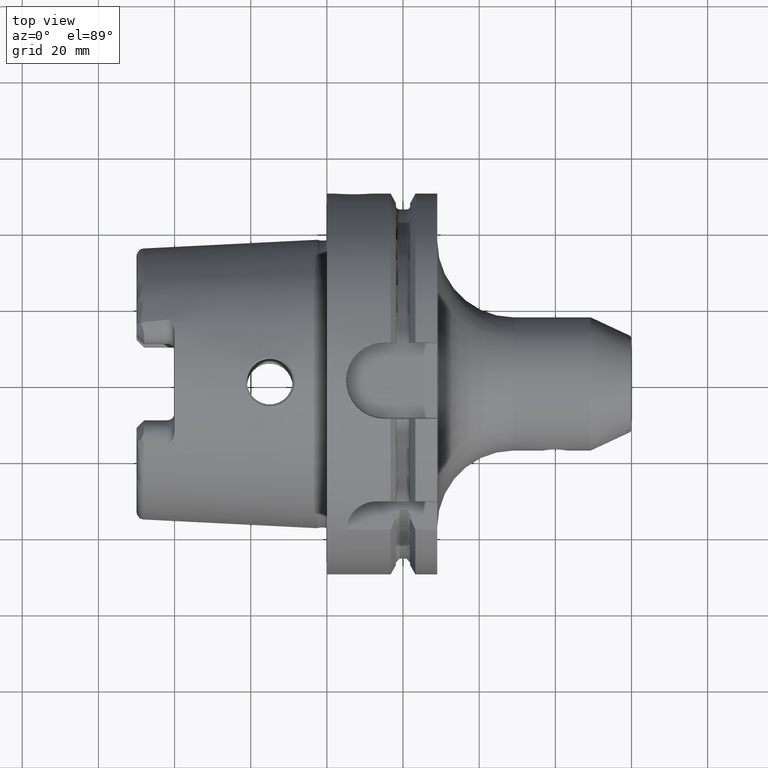
[diagram: clean part render]
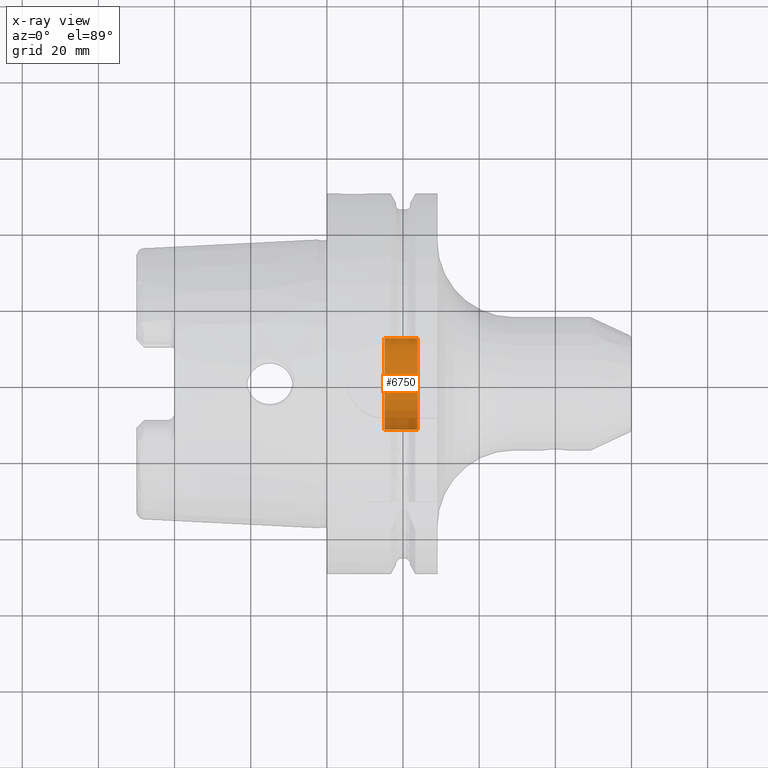
[diagram: x-ray — body ghosted, one internal face saturated and labeled with its STEP entity id]
A machine part, top view, then the same camera in x-ray: the body is ghosted and one INTERNAL B-rep face — a face not visible from any outside direction — is saturated and labeled: STEP entity #6750.
In plain terms, the highlighted cylindrical surface (partial cylindrical patch) has radius 12 mm, axis along (1, 0, 0).
Its self-contained STEP definition (entity closure, byte-faithful):
#6663=CARTESIAN_POINT('',(1.51625E1,0.E0,0.E0));
#6664=DIRECTION('',(1.E0,0.E0,0.E0));
#6665=DIRECTION('',(0.E0,-1.E0,0.E0));
#6666=AXIS2_PLACEMENT_3D('',#6663,#6664,#6665);
#6668=CARTESIAN_POINT('',(2.385262794416E1,0.E0,0.E0));
#6669=DIRECTION('',(-1.E0,0.E0,0.E0));
#6670=DIRECTION('',(0.E0,1.E0,0.E0));
#6671=AXIS2_PLACEMENT_3D('',#6668,#6669,#6670);
#6688=DIRECTION('',(-1.E0,0.E0,0.E0));
#6689=VECTOR('',#6688,8.690127944163E0);
#6690=CARTESIAN_POINT('',(2.385262794416E1,-1.2E1,0.E0));
#6691=LINE('',#6690,#6689);
#6697=DIRECTION('',(-1.E0,0.E0,0.E0));
#6698=VECTOR('',#6697,8.690127944163E0);
#6699=CARTESIAN_POINT('',(2.385262794416E1,1.2E1,0.E0));
#6700=LINE('',#6699,#6698);
#6723=CARTESIAN_POINT('',(1.51625E1,-1.2E1,0.E0));
#6724=CARTESIAN_POINT('',(1.51625E1,1.2E1,0.E0));
#6725=VERTEX_POINT('',#6723);
#6726=VERTEX_POINT('',#6724);
#6727=CARTESIAN_POINT('',(2.385262794416E1,-1.2E1,0.E0));
#6728=CARTESIAN_POINT('',(2.385262794416E1,1.2E1,0.E0));
#6729=VERTEX_POINT('',#6727);
#6730=VERTEX_POINT('',#6728);
#6735=CARTESIAN_POINT('',(-4.847666062263E0,0.E0,0.E0));
#6736=DIRECTION('',(1.E0,0.E0,0.E0));
#6737=DIRECTION('',(0.E0,-1.E0,0.E0));
#6738=AXIS2_PLACEMENT_3D('',#6735,#6736,#6737);
#6739=CYLINDRICAL_SURFACE('',#6738,1.2E1);
#6741=ORIENTED_EDGE('',*,*,#6740,.T.);
#6743=ORIENTED_EDGE('',*,*,#6742,.F.);
#6745=ORIENTED_EDGE('',*,*,#6744,.T.);
#6747=ORIENTED_EDGE('',*,*,#6746,.T.);
#6748=EDGE_LOOP('',(#6741,#6743,#6745,#6747));
#6749=FACE_OUTER_BOUND('',#6748,.F.);
#6750=ADVANCED_FACE('',(#6749),#6739,.F.);
#6667=CIRCLE('',#6666,1.2E1);
#6672=CIRCLE('',#6671,1.2E1);
#6740=EDGE_CURVE('',#6725,#6726,#6667,.T.);
#6742=EDGE_CURVE('',#6730,#6726,#6700,.T.);
#6744=EDGE_CURVE('',#6730,#6729,#6672,.T.);
#6746=EDGE_CURVE('',#6729,#6725,#6691,.T.);